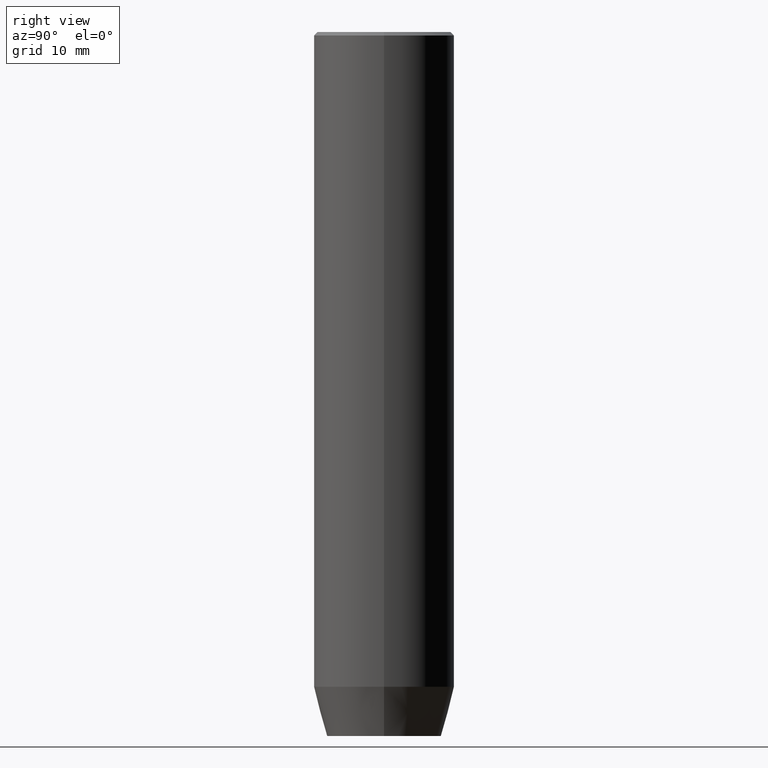
[diagram: clean part render]
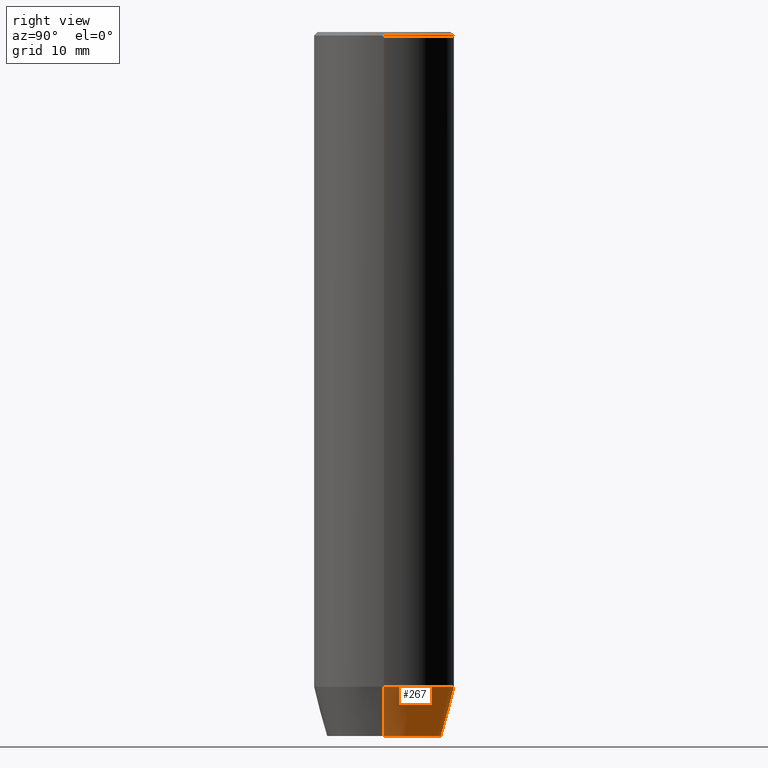
[diagram: same view with one face highlighted and labeled with its STEP entity id]
A machine part, right view. The second image highlights one B-rep face of the part: STEP entity #267.
In plain terms, the highlighted conical surface has half-angle 15 deg.
Its self-contained STEP definition (entity closure, byte-faithful):
#8 = EDGE_CURVE ( 'NONE', #567, #415, #277, .T. ) ;
#41 = EDGE_CURVE ( 'NONE', #507, #66, #100, .T. ) ;
#62 = CARTESIAN_POINT ( 'NONE',  ( 10.00000000000000000, 0.000000000000000000, -93.00000000000000000 ) ) ;
#66 = VERTEX_POINT ( 'NONE', #286 ) ;
#81 = CARTESIAN_POINT ( 'NONE',  ( 8.124355652982135467, 0.000000000000000000, -100.0000000000000000 ) ) ;
#88 = CIRCLE ( 'NONE', #495, 10.00000000000000000 ) ;
#95 = DIRECTION ( 'NONE',  ( -0.000000000000000000, -0.000000000000000000, 1.000000000000000000 ) ) ;
#100 = LINE ( 'NONE', #154, #115 ) ;
#115 = VECTOR ( 'NONE', #562, 1000.000000000000000 ) ;
#117 = CARTESIAN_POINT ( 'NONE',  ( -8.124355652982135467, 1.109796706851640556E-15, -100.0000000000000000 ) ) ;
#118 = EDGE_LOOP ( 'NONE', ( #473, #121, #211, #225 ) ) ;
#119 = FACE_OUTER_BOUND ( 'NONE', #118, .T. ) ;
#121 = ORIENTED_EDGE ( 'NONE', *, *, #41, .T. ) ;
#154 = CARTESIAN_POINT ( 'NONE',  ( -10.00000000000000000, 1.224646799147353256E-15, -93.00000000000000000 ) ) ;
#182 = CIRCLE ( 'NONE', #192, 8.124355652982135467 ) ;
#192 = AXIS2_PLACEMENT_3D ( 'NONE', #210, #566, #479 ) ;
#200 = DIRECTION ( 'NONE',  ( 1.000000000000000000, 0.000000000000000000, 0.000000000000000000 ) ) ;
#210 = CARTESIAN_POINT ( 'NONE',  ( 0.000000000000000000, 0.000000000000000000, -100.0000000000000000 ) ) ;
#211 = ORIENTED_EDGE ( 'NONE', *, *, #366, .F. ) ;
#225 = ORIENTED_EDGE ( 'NONE', *, *, #8, .F. ) ;
#264 = DIRECTION ( 'NONE',  ( 1.000000000000000000, 0.000000000000000000, 0.000000000000000000 ) ) ;
#267 = ADVANCED_FACE ( 'NONE', ( #119 ), #394, .T. ) ;
#277 = LINE ( 'NONE', #279, #363 ) ;
#279 = CARTESIAN_POINT ( 'NONE',  ( 10.00000000000000000, 0.000000000000000000, -93.00000000000000000 ) ) ;
#286 = CARTESIAN_POINT ( 'NONE',  ( -10.00000000000000000, 1.224646799147353256E-15, -93.00000000000000000 ) ) ;
#363 = VECTOR ( 'NONE', #508, 1000.000000000000000 ) ;
#366 = EDGE_CURVE ( 'NONE', #415, #66, #88, .T. ) ;
#394 = CONICAL_SURFACE ( 'NONE', #471, 10.00000000000000000, 0.2617993877991500740 ) ;
#395 = CARTESIAN_POINT ( 'NONE',  ( 0.000000000000000000, 0.000000000000000000, -93.00000000000000000 ) ) ;
#415 = VERTEX_POINT ( 'NONE', #62 ) ;
#449 = EDGE_CURVE ( 'NONE', #567, #507, #182, .T. ) ;
#471 = AXIS2_PLACEMENT_3D ( 'NONE', #395, #490, #264 ) ;
#473 = ORIENTED_EDGE ( 'NONE', *, *, #449, .T. ) ;
#479 = DIRECTION ( 'NONE',  ( 1.000000000000000000, 0.000000000000000000, 0.000000000000000000 ) ) ;
#490 = DIRECTION ( 'NONE',  ( -0.000000000000000000, -0.000000000000000000, 1.000000000000000000 ) ) ;
#495 = AXIS2_PLACEMENT_3D ( 'NONE', #510, #95, #200 ) ;
#507 = VERTEX_POINT ( 'NONE', #117 ) ;
#508 = DIRECTION ( 'NONE',  ( 0.2588190451025213501, 0.000000000000000000, 0.9659258262890680902 ) ) ;
#510 = CARTESIAN_POINT ( 'NONE',  ( 0.000000000000000000, 0.000000000000000000, -93.00000000000000000 ) ) ;
#562 = DIRECTION ( 'NONE',  ( -0.2588190451025213501, 3.169619151431772337E-17, 0.9659258262890680902 ) ) ;
#566 = DIRECTION ( 'NONE',  ( -0.000000000000000000, -0.000000000000000000, 1.000000000000000000 ) ) ;
#567 = VERTEX_POINT ( 'NONE', #81 ) ;